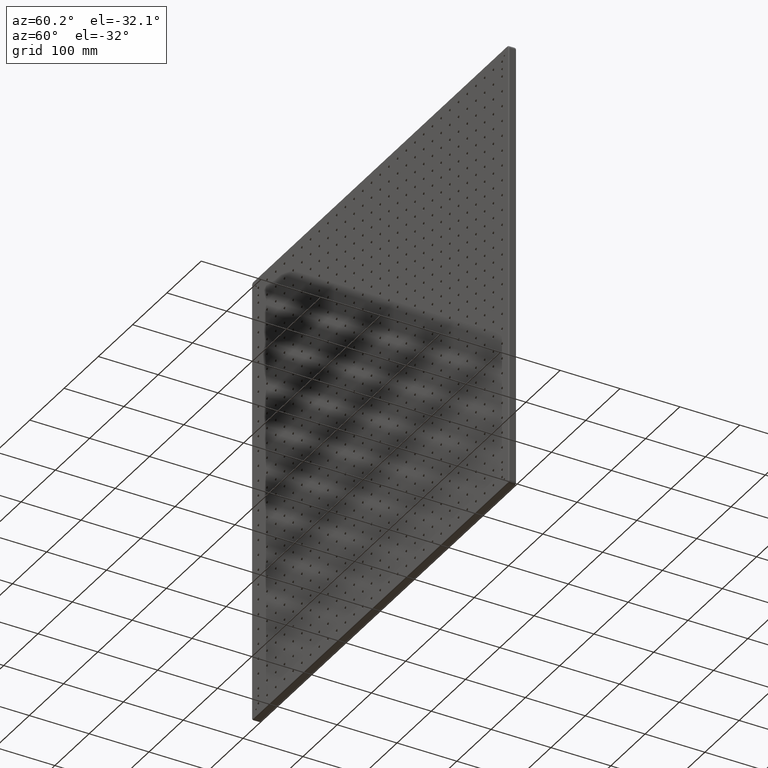
[diagram: clean part render]
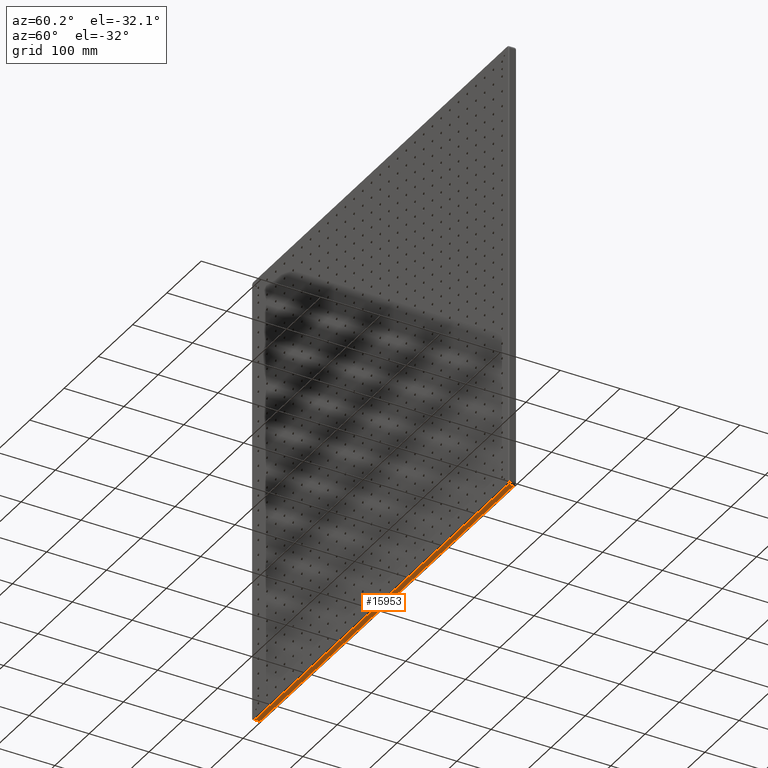
[diagram: same view with one face highlighted and labeled with its STEP entity id]
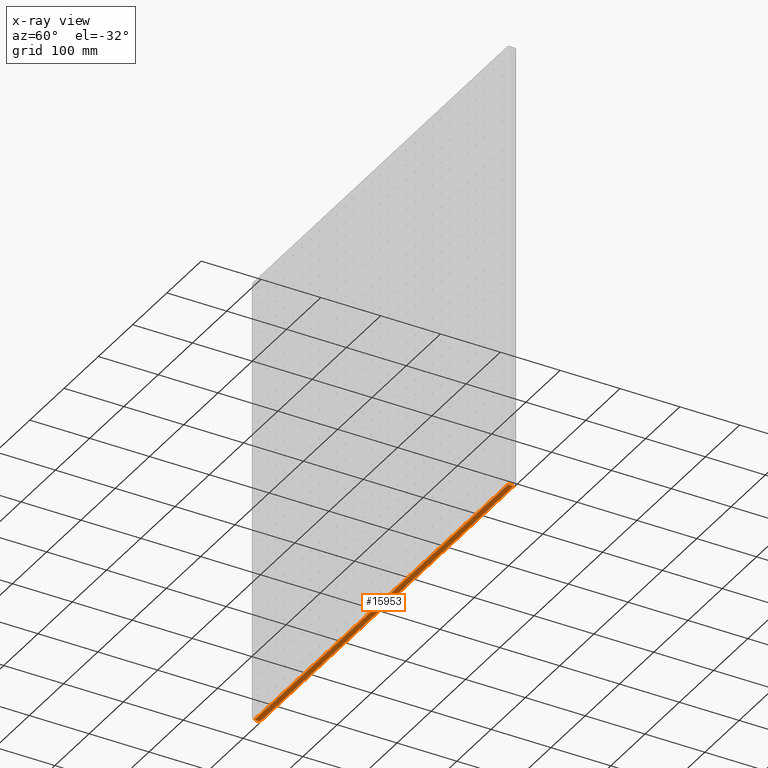
[diagram: x-ray of the same camera — body ghosted, the highlighted face saturated]
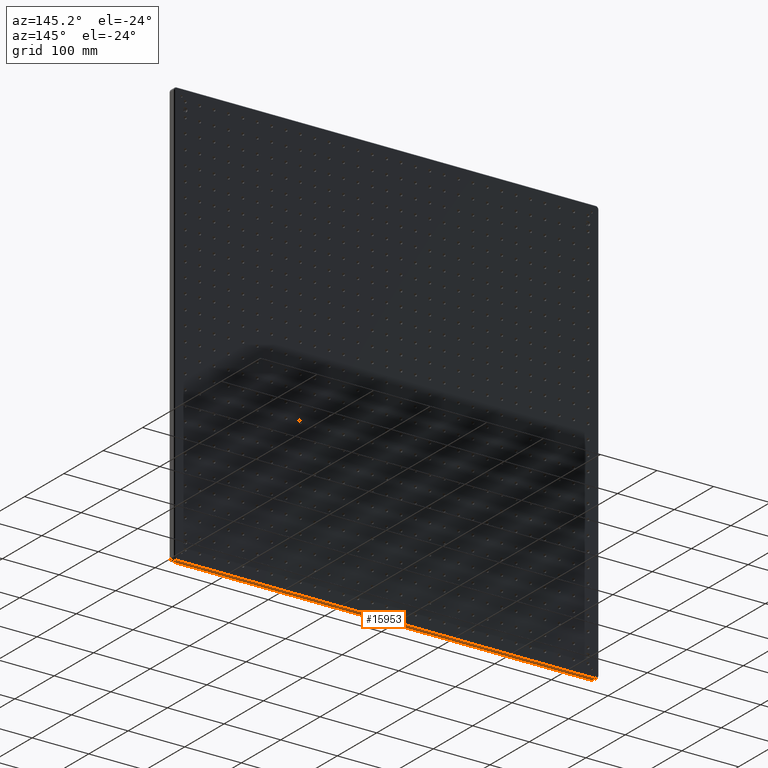
[diagram: same view with one face highlighted and labeled with its STEP entity id]
A machine part, auxiliary view. The second image highlights one B-rep face of the part: STEP entity #15953.
The next image is the same camera in x-ray: the body ghosted, the highlighted face saturated — about 0% of this face is hidden behind the body in this view.
A second angle (auxiliary view) of the same face is appended — the face is thin or edge-on in the first view.
In plain terms, the highlighted planar face has unit normal (0, 0, 1).
Its self-contained STEP definition (entity closure, byte-faithful):
#586 = AXIS2_PLACEMENT_3D ( 'NONE', #37109, #27736, #56798 ) ;
#696 = VERTEX_POINT ( 'NONE', #10296 ) ;
#4232 = VECTOR ( 'NONE', #6671, 1000.000000000000000 ) ;
#6671 = DIRECTION ( 'NONE',  ( -0.000000000000000000, -1.000000000000000000, -0.000000000000000000 ) ) ;
#8046 = EDGE_CURVE ( 'NONE', #35286, #24776, #28783, .T. ) ;
#8060 = PLANE ( 'NONE',  #586 ) ;
#9810 = VECTOR ( 'NONE', #39451, 1000.000000000000000 ) ;
#10296 = CARTESIAN_POINT ( 'NONE',  ( 370.0000000000001137, 2.000000000000001776, -374.9999999999998863 ) ) ;
#12017 = ORIENTED_EDGE ( 'NONE', *, *, #61295, .F. ) ;
#12215 = VERTEX_POINT ( 'NONE', #55520 ) ;
#15953 = ADVANCED_FACE ( 'NONE', ( #46811 ), #8060, .F. ) ;
#21758 = ORIENTED_EDGE ( 'NONE', *, *, #40773, .T. ) ;
#23159 = ORIENTED_EDGE ( 'NONE', *, *, #35623, .T. ) ;
#23949 = CARTESIAN_POINT ( 'NONE',  ( 370.0000000000001137, 11.00000000000000000, -374.9999999999998863 ) ) ;
#24776 = VERTEX_POINT ( 'NONE', #34002 ) ;
#26372 = CARTESIAN_POINT ( 'NONE',  ( -370.0000000000001137, 13.00000000000000000, -374.9999999999998863 ) ) ;
#27106 = CARTESIAN_POINT ( 'NONE',  ( 370.0000000000001137, 13.00000000000000000, -374.9999999999998863 ) ) ;
#27736 = DIRECTION ( 'NONE',  ( 0.000000000000000000, 0.000000000000000000, 1.000000000000000000 ) ) ;
#28783 = LINE ( 'NONE', #23949, #9810 ) ;
#30521 = CARTESIAN_POINT ( 'NONE',  ( -370.0000000000001137, 11.00000000000000000, -374.9999999999998863 ) ) ;
#34002 = CARTESIAN_POINT ( 'NONE',  ( 370.0000000000001137, 11.00000000000000000, -374.9999999999998863 ) ) ;
#35286 = VERTEX_POINT ( 'NONE', #30521 ) ;
#35623 = EDGE_CURVE ( 'NONE', #696, #12215, #62717, .T. ) ;
#37093 = LINE ( 'NONE', #27106, #39461 ) ;
#37109 = CARTESIAN_POINT ( 'NONE',  ( -370.0000000000001137, 13.00000000000000000, -374.9999999999998863 ) ) ;
#39451 = DIRECTION ( 'NONE',  ( 1.000000000000000000, -0.000000000000000000, -0.000000000000000000 ) ) ;
#39461 = VECTOR ( 'NONE', #56474, 1000.000000000000000 ) ;
#40773 = EDGE_CURVE ( 'NONE', #24776, #696, #37093, .T. ) ;
#42402 = CARTESIAN_POINT ( 'NONE',  ( -370.0000000000001137, 2.000000000000000000, -374.9999999999998863 ) ) ;
#46811 = FACE_OUTER_BOUND ( 'NONE', #62094, .T. ) ;
#50907 = LINE ( 'NONE', #26372, #4232 ) ;
#55520 = CARTESIAN_POINT ( 'NONE',  ( -370.0000000000001137, 2.000000000000003553, -374.9999999999998863 ) ) ;
#56474 = DIRECTION ( 'NONE',  ( -0.000000000000000000, -1.000000000000000000, -0.000000000000000000 ) ) ;
#56752 = ORIENTED_EDGE ( 'NONE', *, *, #8046, .T. ) ;
#56798 = DIRECTION ( 'NONE',  ( 1.000000000000000000, 0.000000000000000000, -0.000000000000000000 ) ) ;
#57875 = DIRECTION ( 'NONE',  ( -1.000000000000000000, 0.000000000000000000, 0.000000000000000000 ) ) ;
#58994 = VECTOR ( 'NONE', #57875, 1000.000000000000000 ) ;
#61295 = EDGE_CURVE ( 'NONE', #35286, #12215, #50907, .T. ) ;
#62094 = EDGE_LOOP ( 'NONE', ( #21758, #23159, #12017, #56752 ) ) ;
#62717 = LINE ( 'NONE', #42402, #58994 ) ;